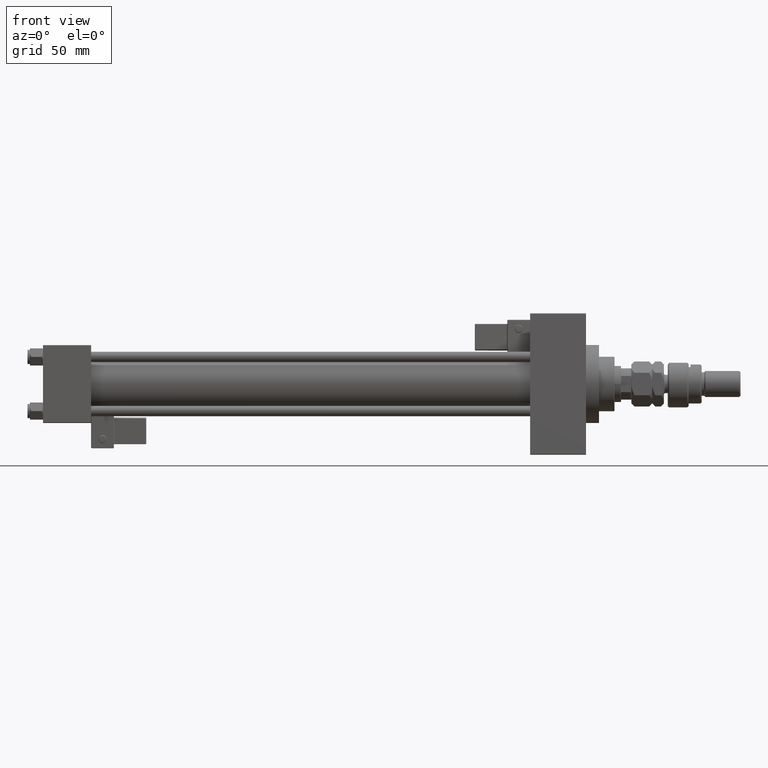
[diagram: clean part render]
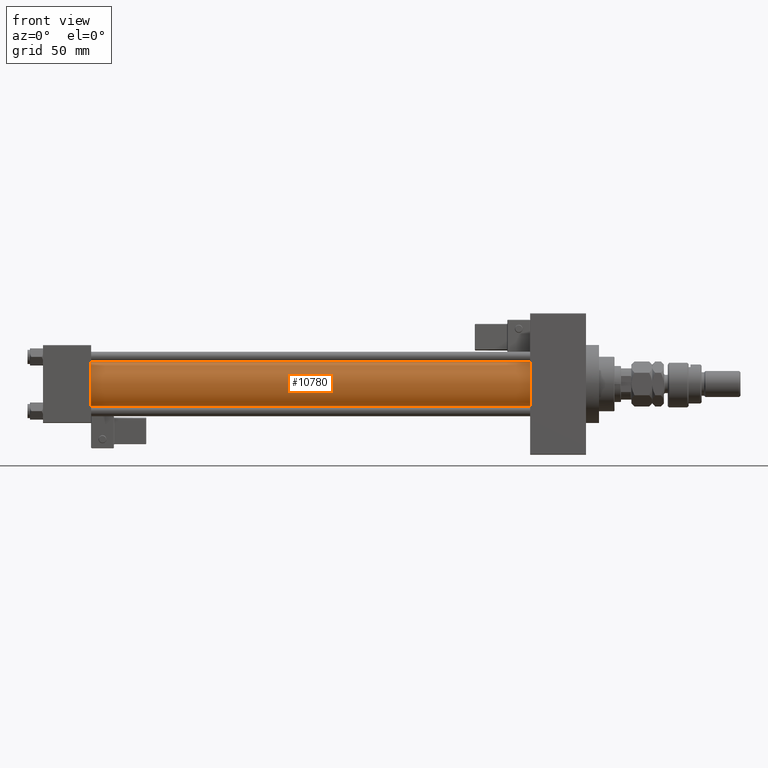
[diagram: same view with one face highlighted and labeled with its STEP entity id]
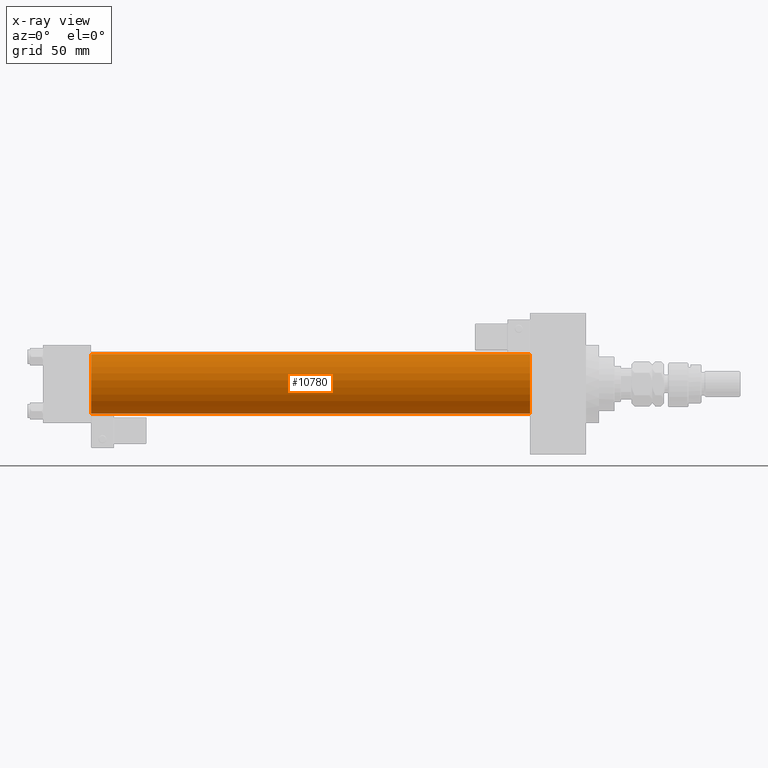
[diagram: x-ray of the same camera — body ghosted, the highlighted face saturated]
A machine part, front view. The second image highlights one B-rep face of the part: STEP entity #10780.
The next image is the same camera in x-ray: the body ghosted, the highlighted face saturated — about 0% of this face is hidden behind the body in this view.
In plain terms, the highlighted cylindrical surface (edge-blend (fillet) strip) has radius 23 mm, axis along (-1, -0, -0).
Its self-contained STEP definition (entity closure, byte-faithful):
#1429 = DIRECTION ( 'NONE',  ( -1.000000000000000000, -0.000000000000000000, -0.000000000000000000 ) ) ;
#2226 = CIRCLE ( 'NONE', #42106, 23.00000000000000000 ) ;
#3527 = EDGE_CURVE ( 'NONE', #10437, #6333, #25605, .T. ) ;
#3904 = CIRCLE ( 'NONE', #44643, 23.00000000000000000 ) ;
#4257 = CARTESIAN_POINT ( 'NONE',  ( 375.0000000000000000, -2.602085213965210642E-15, 23.00000000000000000 ) ) ;
#5091 = VERTEX_POINT ( 'NONE', #4257 ) ;
#5419 = LINE ( 'NONE', #6193, #39553 ) ;
#6193 = CARTESIAN_POINT ( 'NONE',  ( 375.0000000000000000, -2.602085213965210642E-15, 23.00000000000000000 ) ) ;
#6333 = VERTEX_POINT ( 'NONE', #44866 ) ;
#6706 = DIRECTION ( 'NONE',  ( 0.000000000000000000, 0.000000000000000000, 1.000000000000000000 ) ) ;
#10437 = VERTEX_POINT ( 'NONE', #39761 ) ;
#10780 = ADVANCED_FACE ( 'NONE', ( #11467 ), #52126, .T. ) ;
#11444 = ORIENTED_EDGE ( 'NONE', *, *, #36117, .T. ) ;
#11467 = FACE_OUTER_BOUND ( 'NONE', #24843, .T. ) ;
#12950 = CARTESIAN_POINT ( 'NONE',  ( 36.99999999999997868, -2.602085213965210642E-15, 0.000000000000000000 ) ) ;
#16400 = DIRECTION ( 'NONE',  ( 0.000000000000000000, 0.000000000000000000, -1.000000000000000000 ) ) ;
#20639 = DIRECTION ( 'NONE',  ( 1.000000000000000000, -0.000000000000000000, 0.000000000000000000 ) ) ;
#20898 = DIRECTION ( 'NONE',  ( 1.000000000000000000, 0.000000000000000000, 0.000000000000000000 ) ) ;
#22216 = AXIS2_PLACEMENT_3D ( 'NONE', #39902, #30861, #6706 ) ;
#24843 = EDGE_LOOP ( 'NONE', ( #33578, #50793, #11444, #44468 ) ) ;
#25605 = LINE ( 'NONE', #41822, #34652 ) ;
#25619 = EDGE_CURVE ( 'NONE', #41746, #6333, #3904, .T. ) ;
#29410 = DIRECTION ( 'NONE',  ( 0.000000000000000000, 0.000000000000000000, 1.000000000000000000 ) ) ;
#30861 = DIRECTION ( 'NONE',  ( -1.000000000000000000, -0.000000000000000000, -0.000000000000000000 ) ) ;
#33578 = ORIENTED_EDGE ( 'NONE', *, *, #3527, .F. ) ;
#34652 = VECTOR ( 'NONE', #1429, 1000.000000000000000 ) ;
#36117 = EDGE_CURVE ( 'NONE', #5091, #41746, #5419, .T. ) ;
#37555 = DIRECTION ( 'NONE',  ( -1.000000000000000000, -0.000000000000000000, -0.000000000000000000 ) ) ;
#38715 = EDGE_CURVE ( 'NONE', #5091, #10437, #2226, .T. ) ;
#39553 = VECTOR ( 'NONE', #37555, 1000.000000000000000 ) ;
#39761 = CARTESIAN_POINT ( 'NONE',  ( 375.0000000000000000, 2.146024240737016609E-16, -23.00000000000000000 ) ) ;
#39902 = CARTESIAN_POINT ( 'NONE',  ( 375.0000000000000000, -2.602085213965210642E-15, 0.000000000000000000 ) ) ;
#41746 = VERTEX_POINT ( 'NONE', #52169 ) ;
#41822 = CARTESIAN_POINT ( 'NONE',  ( 375.0000000000000000, 2.146024240737016609E-16, -23.00000000000000000 ) ) ;
#42106 = AXIS2_PLACEMENT_3D ( 'NONE', #52575, #20898, #16400 ) ;
#44468 = ORIENTED_EDGE ( 'NONE', *, *, #25619, .T. ) ;
#44643 = AXIS2_PLACEMENT_3D ( 'NONE', #12950, #20639, #29410 ) ;
#44866 = CARTESIAN_POINT ( 'NONE',  ( 36.99999999999997868, 2.146024240737016609E-16, -23.00000000000000000 ) ) ;
#50793 = ORIENTED_EDGE ( 'NONE', *, *, #38715, .F. ) ;
#52126 = CYLINDRICAL_SURFACE ( 'NONE', #22216, 23.00000000000000000 ) ;
#52169 = CARTESIAN_POINT ( 'NONE',  ( 36.99999999999997868, -2.602085213965210642E-15, 23.00000000000000000 ) ) ;
#52575 = CARTESIAN_POINT ( 'NONE',  ( 375.0000000000000000, -2.602085213965210642E-15, 0.000000000000000000 ) ) ;